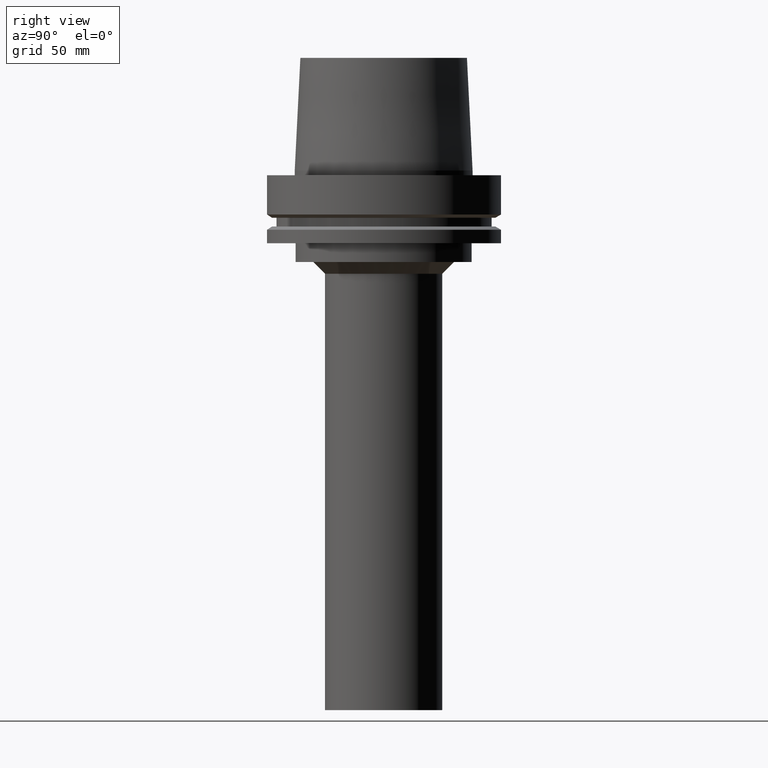
[diagram: clean part render]
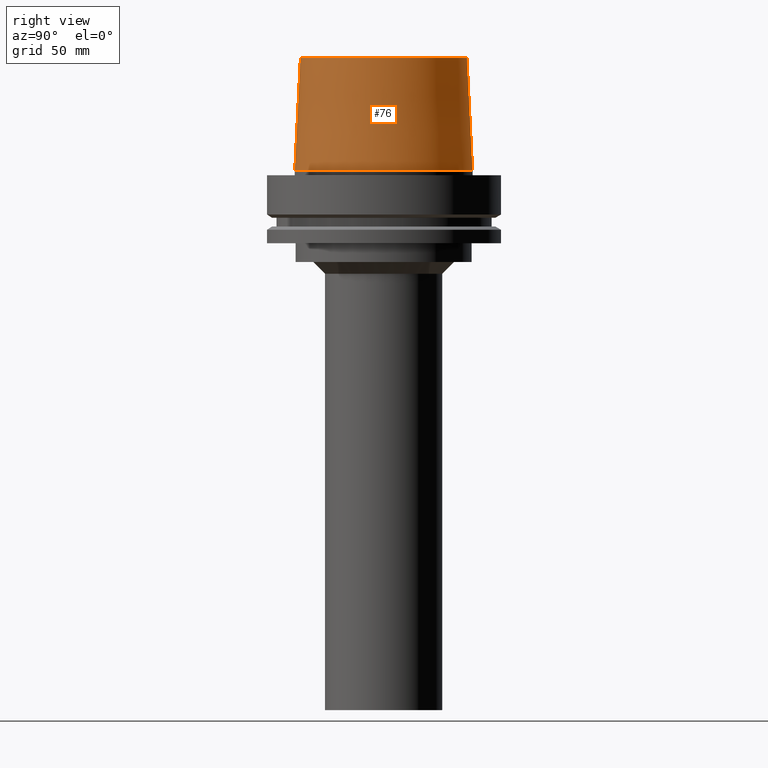
[diagram: same view with one face highlighted and labeled with its STEP entity id]
A machine part, right view. The second image highlights one B-rep face of the part: STEP entity #76.
In plain terms, the highlighted conical surface has half-angle 2.862 deg.
Its self-contained STEP definition (entity closure, byte-faithful):
#76=ADVANCED_FACE('',(#95,#96),#97,.T.);
#95=FACE_BOUND('',#144,.T.);
#96=FACE_BOUND('',#145,.T.);
#97=CONICAL_SURFACE('',#146,36.7000000007809,0.0499583956894865);
#144=EDGE_LOOP('',(#195));
#145=EDGE_LOOP('',(#196));
#146=AXIS2_PLACEMENT_3D('',#197,#198,#199);
#195=ORIENTED_EDGE('',*,*,#275,.F.);
#196=ORIENTED_EDGE('',*,*,#274,.T.);
#197=CARTESIAN_POINT('',(-1.59204083889156E-015,-3.18408167778312E-015,26.0));
#198=DIRECTION('',(6.12323399573677E-017,1.22464679914735E-016,-1.0));
#199=DIRECTION('',(-1.23259516440783E-032,1.0,1.22464679914735E-016));
#274=EDGE_CURVE('',#290,#290,#291,.T.);
#275=EDGE_CURVE('',#292,#292,#293,.T.);
#290=VERTEX_POINT('',#322);
#291=CIRCLE('',#323,35.5000000015618);
#292=VERTEX_POINT('',#324);
#293=CIRCLE('',#325,37.9);
#322=CARTESIAN_POINT('',(-3.06161699786838E-015,35.5000000015618,50.0));
#323=AXIS2_PLACEMENT_3D('',#354,#355,#356);
#324=CARTESIAN_POINT('',(-1.22464679914736E-016,37.9,2.0));
#325=AXIS2_PLACEMENT_3D('',#357,#358,#359);
#354=CARTESIAN_POINT('',(-3.06161699786838E-015,-6.12323399573676E-015,50.0));
#355=DIRECTION('',(6.12323399573677E-017,1.22464679914735E-016,-1.0));
#356=DIRECTION('',(-1.23259516440783E-032,1.0,1.22464679914735E-016));
#357=CARTESIAN_POINT('',(-1.22464679914735E-016,-2.44929359829471E-016,2.0));
#358=DIRECTION('',(6.12323399573677E-017,1.22464679914735E-016,-1.0));
#359=DIRECTION('',(-1.23259516440783E-032,1.0,1.22464679914735E-016));